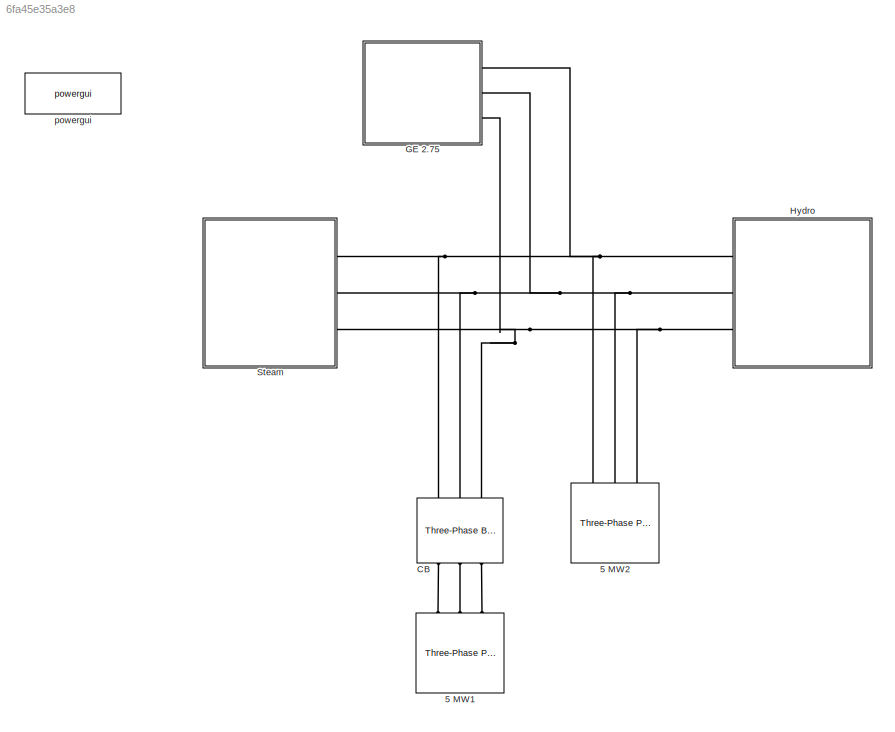
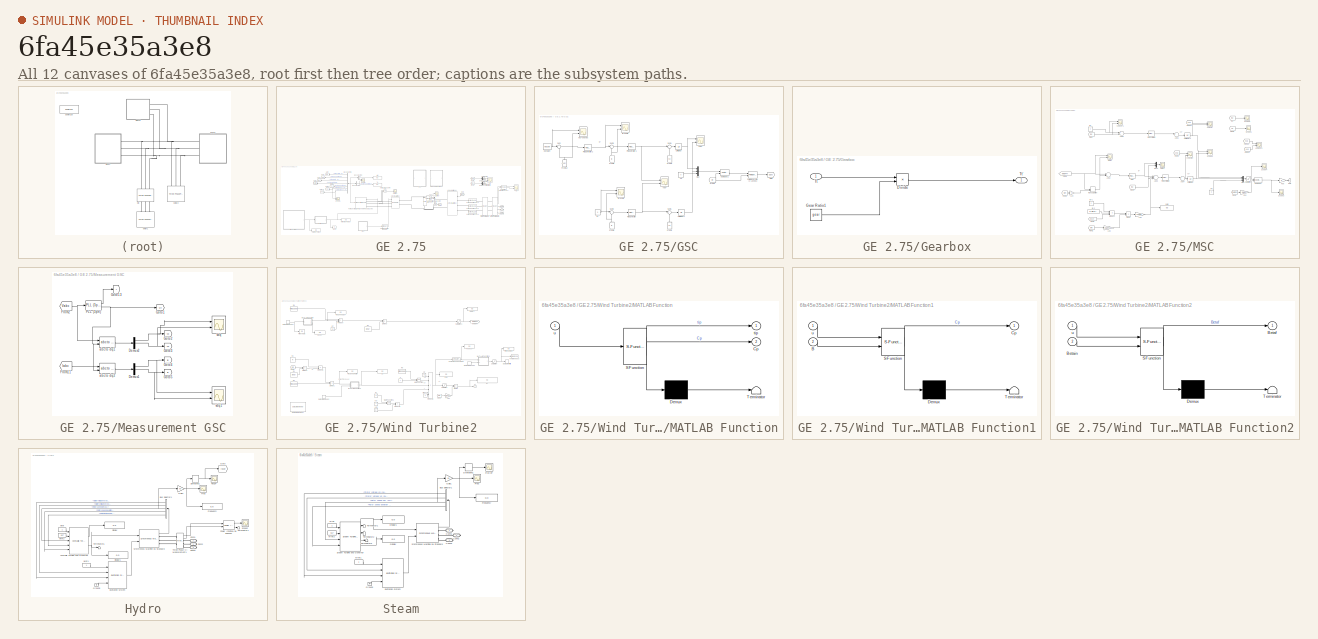
[diagram: thumbnail index - all 12 canvases of the model, root first then tree order]
MODEL slx_6fa45e35a3e8
KIND model
CONFIG AbsTol = auto
CONFIG FixedStep = Ts
CONFIG MaxStep = auto
CONFIG MinStep = auto
CONFIG PreLoadFcn = Ts=5e-6;
CONFIG RelTol = 1e-3
CONFIG SampleTimeConstraint = Unconstrained
CONFIG Solver = FixedStepDiscrete
CONFIG SolverMode = Auto
CONFIG SolverName = FixedStepDiscrete
CONFIG StartTime = 0.0
CONFIG StopTime = 3
BLOCK [Reference] 5 MW1  REF=powerlib/Elements/Three-Phase
Parallel RLC Load
  AttributesFormatString = \n
  Ports = [0, 0, 0, 0, 0, 3]
  SourceBlock = powerlib/Elements/Three-Phase\nParallel RLC Load
  SourceType = Three-Phase Parallel RLC Load
BLOCK [Reference] 5 MW2  REF=powerlib/Elements/Three-Phase
Parallel RLC Load
  AttributesFormatString = \n
  Ports = [0, 0, 0, 0, 0, 3]
  SourceBlock = powerlib/Elements/Three-Phase\nParallel RLC Load
  SourceType = Three-Phase Parallel RLC Load
BLOCK [Reference] CB  REF=powerlib/Elements/Three-Phase Breaker
  Ports = [0, 0, 0, 0, 0, 3, 3]
  SourceBlock = powerlib/Elements/Three-Phase Breaker
  SourceType = Three-Phase Breaker
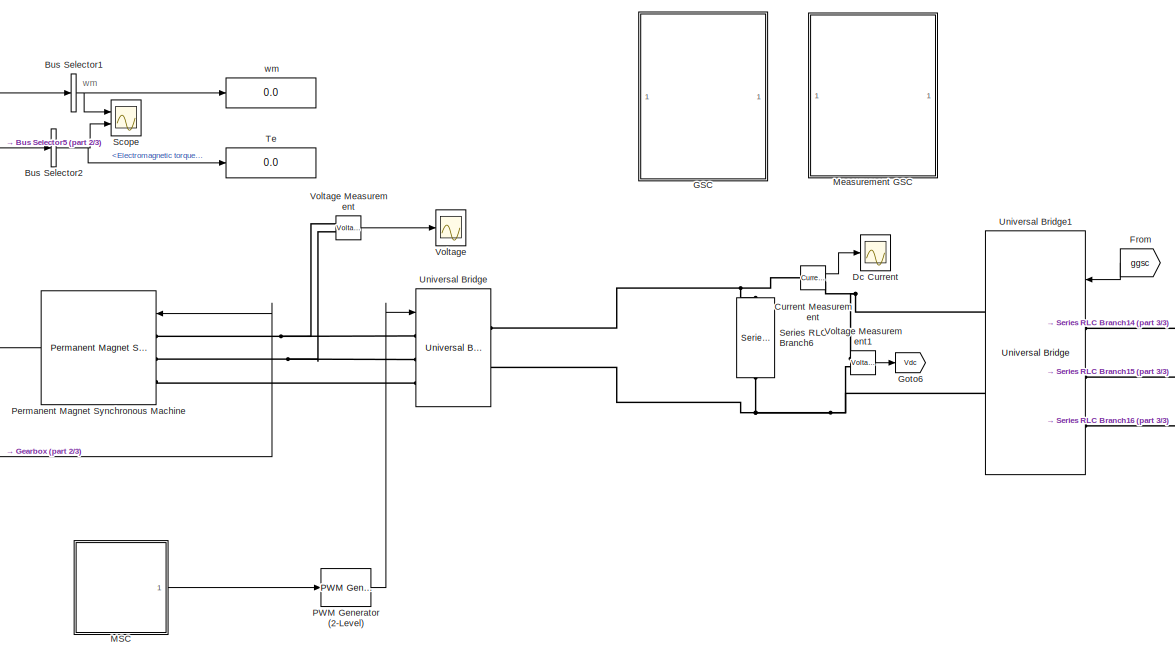
[diagram: GE 2.75 - part 1/3, center side, full height]
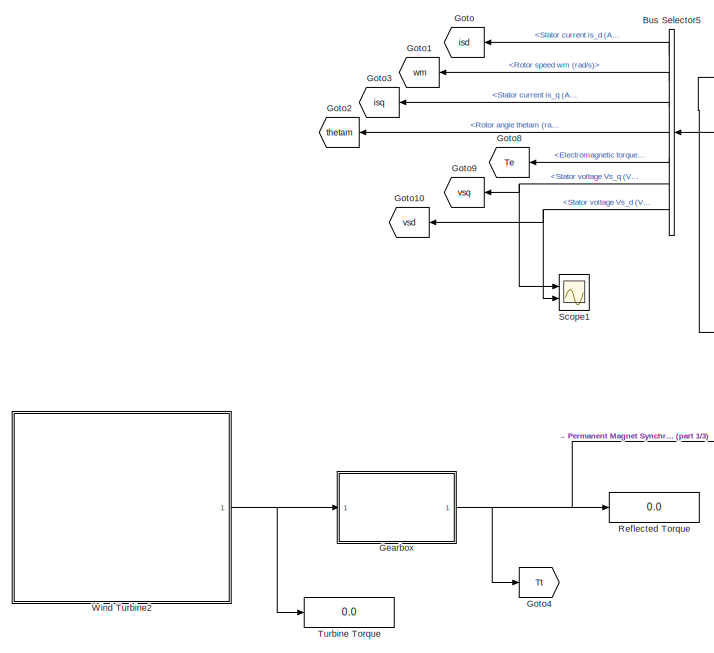
[diagram: GE 2.75 - part 2/3, left side, full height]
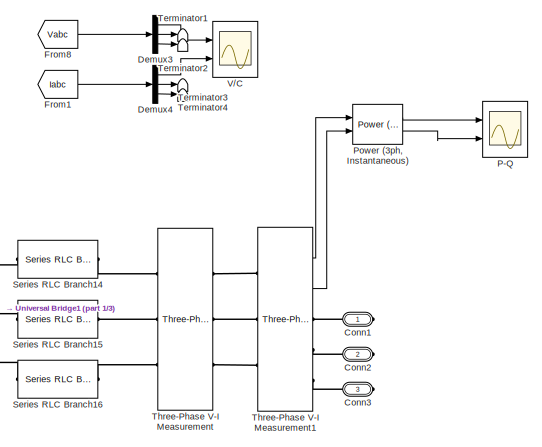
[diagram: GE 2.75 - part 3/3, middle right region]
BLOCK [SubSystem] GE 2.75
  Ports = [0, 0, 0, 0, 0, 0, 3]
  RequestExecContextInheritance = off
  Variant = off
BLOCK [BusSelector] GE 2.75/Bus Selector1
  OutputAsBus = on
  OutputSignals = Rotor speed wm (rad/s)
  Ports = [1, 1]
BLOCK [BusSelector] GE 2.75/Bus Selector2
  OutputSignals = Electromagnetic torque Te (N*m)
  Ports = [1, 1]
BLOCK [BusSelector] GE 2.75/Bus Selector5
  OutputSignals = Stator current is_d (A),Rotor speed wm (rad/s),Stator current is_q (A),Rotor angle thetam (rad),Electromagnetic torque Te (N*m),Stator voltage Vs_q (V),Stator voltage Vs_d (V)
  Ports = [1, 7]
BLOCK [PMIOPort] GE 2.75/Conn1
  Port = 1
  Side = Right
BLOCK [PMIOPort] GE 2.75/Conn2
  Port = 2
  Side = Right
BLOCK [PMIOPort] GE 2.75/Conn3
  Port = 3
  Side = Right
BLOCK [Reference] GE 2.75/Current Measurement  REF=powerlib/Measurements/Current Measurement
  Ports = [0, 1, 0, 0, 0, 1, 1]
  SourceBlock = powerlib/Measurements/Current Measurement
  SourceType = Current Measurement
  UserDataPersistent = on
BLOCK [Scope] GE 2.75/Dc Current
  Ports = [1]
  ScopeSpecificationString = Simulink.scopes.TimeScopeBlockCfg('CurrentConfiguration', extmgr.ConfigurationSet(extmgr.Configuration('Core','General UI',true),extmgr.Configuration('Core','Source UI',true),extmgr.Configuration('Sources','WiredSimulink',true,'DataLoggingSaveFormat','StructureWithTime','DataLoggingDecimation','1','DataLoggingDecimateData',true,'DataLoggingVariableName','ScopeData1'),extmgr.Configuration('Visuals'...<+2273ch>
BLOCK [Demux] GE 2.75/Demux3
  DisplayOption = bar
  Outputs = 3
  Ports = [1, 3]
BLOCK [Demux] GE 2.75/Demux4
  DisplayOption = bar
  Outputs = 3
  Ports = [1, 3]
BLOCK [From] GE 2.75/From
  GotoTag = ggsc
  TagVisibility = global
BLOCK [From] GE 2.75/From1
  GotoTag = Iabc
  TagVisibility = global
BLOCK [From] GE 2.75/From8
  GotoTag = Vabc
  TagVisibility = global
BLOCK [SubSystem] GE 2.75/GSC
  Ports = []
  RequestExecContextInheritance = off
  Variant = off
BLOCK [Constant] GE 2.75/GSC/Constant
  Value = Vdcset
BLOCK [From] GE 2.75/GSC/From12
  GotoTag = Vdc
  TagVisibility = global
BLOCK [From] GE 2.75/GSC/From3
  GotoTag = vd
  TagVisibility = global
BLOCK [From] GE 2.75/GSC/From4
  GotoTag = vq
  TagVisibility = global
BLOCK [From] GE 2.75/GSC/From5
  GotoTag = id
  TagVisibility = global
BLOCK [From] GE 2.75/GSC/From6
  GotoTag = iq
  TagVisibility = global
BLOCK [From] GE 2.75/GSC/From7
  GotoTag = wt
  TagVisibility = global
BLOCK [Goto] GE 2.75/GSC/Goto
  GotoTag = ggsc
  TagVisibility = global
BLOCK [Mux] GE 2.75/GSC/Mux
  DisplayOption = bar
  Inputs = 3
  Ports = [3, 1]
BLOCK [Reference] GE 2.75/GSC/PID Controller  REF=simulink/Continuous/PID Controller
  Ports = [1, 1]
  SourceBlock = simulink/Continuous/PID Controller
  SourceType = PID 1dof
BLOCK [Reference] GE 2.75/GSC/PID Controller1  REF=simulink/Continuous/PID Controller
  Ports = [1, 1]
  SourceBlock = simulink/Continuous/PID Controller
  SourceType = PID 1dof
BLOCK [Reference] GE 2.75/GSC/PID Controller2  REF=simulink/Continuous/PID Controller
  Ports = [1, 1]
  SourceBlock = simulink/Continuous/PID Controller
  SourceType = PID 1dof
BLOCK [Reference] GE 2.75/GSC/PWM Generator (2-Level)2  REF=powerlib_meascontrol/Pulse & Signal
Generators/PWM Generator
(2-Level)
  Ports = [2, 1]
  SourceBlock = powerlib_meascontrol/Pulse & Signal\nGenerators/PWM Generator\n(2-Level)
  SourceType = PWM Generator (2-Level)
BLOCK [Sum] GE 2.75/GSC/Sum
  IconShape = round
  InputSameDT = off
  Inputs = |-+
  OutDataTypeStr = Inherit: Inherit via internal rule
  Ports = [2, 1]
  SaturateOnIntegerOverflow = off
BLOCK [Sum] GE 2.75/GSC/Sum1
  IconShape = round
  InputSameDT = off
  Inputs = |++
  OutDataTypeStr = Inherit: Inherit via internal rule
  Ports = [2, 1]
  SaturateOnIntegerOverflow = off
BLOCK [Sum] GE 2.75/GSC/Sum2
  IconShape = round
  InputSameDT = off
  Inputs = |+-
  OutDataTypeStr = Inherit: Inherit via internal rule
  Ports = [2, 1]
  SaturateOnIntegerOverflow = off
BLOCK [Sum] GE 2.75/GSC/Sum3
  IconShape = round
  InputSameDT = off
  Inputs = |+-
  OutDataTypeStr = Inherit: Inherit via internal rule
  Ports = [2, 1]
  SaturateOnIntegerOverflow = off
BLOCK [Sum] GE 2.75/GSC/Sum4
  IconShape = round
  InputSameDT = off
  Inputs = |++
  OutDataTypeStr = Inherit: Inherit via internal rule
  Ports = [2, 1]
  SaturateOnIntegerOverflow = off
BLOCK [UnitDelay] GE 2.75/GSC/Unit Delay
  InputProcessing = Elements as channels (sample based)
  SampleTime = -1
BLOCK [UnitDelay] GE 2.75/GSC/Unit Delay1
  InputProcessing = Elements as channels (sample based)
  SampleTime = -1
BLOCK [Scope] GE 2.75/GSC/Vdc* and Vdc
  NumInputPorts = 2
  Ports = [2]
  ScopeSpecificationString = Simulink.scopes.TimeScopeBlockCfg('CurrentConfiguration', extmgr.ConfigurationSet(extmgr.Configuration('Core','General UI',true),extmgr.Configuration('Core','Source UI',true),extmgr.Configuration('Sources','WiredSimulink',true,'DataLoggingSaveFormat','Array','DataLoggingDecimation','1','DataLoggingVariableName','ScopeData3'),extmgr.Configuration('Visuals','Time Domain',true,'SerializedDisplays',{s...<+3407ch>
BLOCK [Reference] GE 2.75/GSC/dq0 to abc1  REF=powerlib_meascontrol/Transformations/dq0 to abc
  Ports = [2, 1]
  SourceBlock = powerlib_meascontrol/Transformations/dq0 to abc
  SourceType = dq0 to abc Transformation
BLOCK [Scope] GE 2.75/GSC/id* and id 
  NumInputPorts = 2
  Ports = [2]
  ScopeSpecificationString = Simulink.scopes.TimeScopeBlockCfg('CurrentConfiguration', extmgr.ConfigurationSet(extmgr.Configuration('Core','General UI',true),extmgr.Configuration('Core','Source UI',true),extmgr.Configuration('Sources','WiredSimulink',true,'DataLoggingSaveFormat','Array','DataLoggingDecimation','1','DataLoggingVariableName','ScopeData3'),extmgr.Configuration('Visuals','Time Domain',true,'SerializedDisplays',{s...<+1516ch>
BLOCK [Constant] GE 2.75/GSC/iq*
  Value = 0
BLOCK [Scope] GE 2.75/GSC/iq* and iq 
  NumInputPorts = 2
  Ports = [2]
  ScopeSpecificationString = Simulink.scopes.TimeScopeBlockCfg('CurrentConfiguration', extmgr.ConfigurationSet(extmgr.Configuration('Core','General UI',true),extmgr.Configuration('Core','Source UI',true),extmgr.Configuration('Sources','WiredSimulink',true,'DataLoggingSaveFormat','Array','DataLoggingDecimation','1','DataLoggingVariableName','ScopeData4'),extmgr.Configuration('Visuals','Time Domain',true,'SerializedDisplays',{s...<+1508ch>
BLOCK [Constant] GE 2.75/GSC/v0
  Value = 0
BLOCK [Scope] GE 2.75/GSC/vdq*
  NumInputPorts = 2
  Ports = [2]
  ScopeSpecificationString = Simulink.scopes.TimeScopeBlockCfg('CurrentConfiguration', extmgr.ConfigurationSet(extmgr.Configuration('Core','General UI',true),extmgr.Configuration('Core','Source UI',true),extmgr.Configuration('Sources','WiredSimulink',true,'DataLoggingSaveFormat','Array','DataLoggingDecimation','1','DataLoggingVariableName','ScopeData1'),extmgr.Configuration('Visuals','Time Domain',true,'SerializedDisplays',{s...<+1499ch>
BLOCK [Scope] GE 2.75/GSC/vdq* 
  NumInputPorts = 2
  Ports = [2]
  ScopeSpecificationString = Simulink.scopes.TimeScopeBlockCfg('CurrentConfiguration', extmgr.ConfigurationSet(extmgr.Configuration('Core','General UI',true),extmgr.Configuration('Core','Source UI',true),extmgr.Configuration('Sources','WiredSimulink',true,'DataLoggingSaveFormat','Array','DataLoggingDecimation','1','DataLoggingVariableName','ScopeData5'),extmgr.Configuration('Visuals','Time Domain',true,'SerializedDisplays',{s...<+1514ch>
BLOCK [SubSystem] GE 2.75/Gearbox
  Ports = [1, 1]
  RequestExecContextInheritance = off
  Variant = off
BLOCK [Product] GE 2.75/Gearbox/Divide
  InputSameDT = off
  Inputs = */
  OutDataTypeStr = Inherit: Inherit via internal rule
  Ports = [2, 1]
  RndMeth = Floor
  SaturateOnIntegerOverflow = off
BLOCK [Constant] GE 2.75/Gearbox/Gear Ratio1
  Value = gear
BLOCK [Inport] GE 2.75/Gearbox/Tt
  IconDisplay = Port number
BLOCK [Outport] GE 2.75/Gearbox/Tt'
  IconDisplay = Port number
BLOCK [Goto] GE 2.75/Goto
  GotoTag = isd
  TagVisibility = global
BLOCK [Goto] GE 2.75/Goto1
  GotoTag = wm
  TagVisibility = global
BLOCK [Goto] GE 2.75/Goto10
  GotoTag = vsd
  TagVisibility = global
BLOCK [Goto] GE 2.75/Goto2
  GotoTag = thetam
  TagVisibility = global
BLOCK [Goto] GE 2.75/Goto3
  GotoTag = isq
  TagVisibility = global
BLOCK [Goto] GE 2.75/Goto4
  GotoTag = Tt
  TagVisibility = global
BLOCK [Goto] GE 2.75/Goto6
  GotoTag = Vdc
  TagVisibility = global
BLOCK [Goto] GE 2.75/Goto8
  GotoTag = Te
  TagVisibility = global
BLOCK [Goto] GE 2.75/Goto9
  GotoTag = vsq
  TagVisibility = global
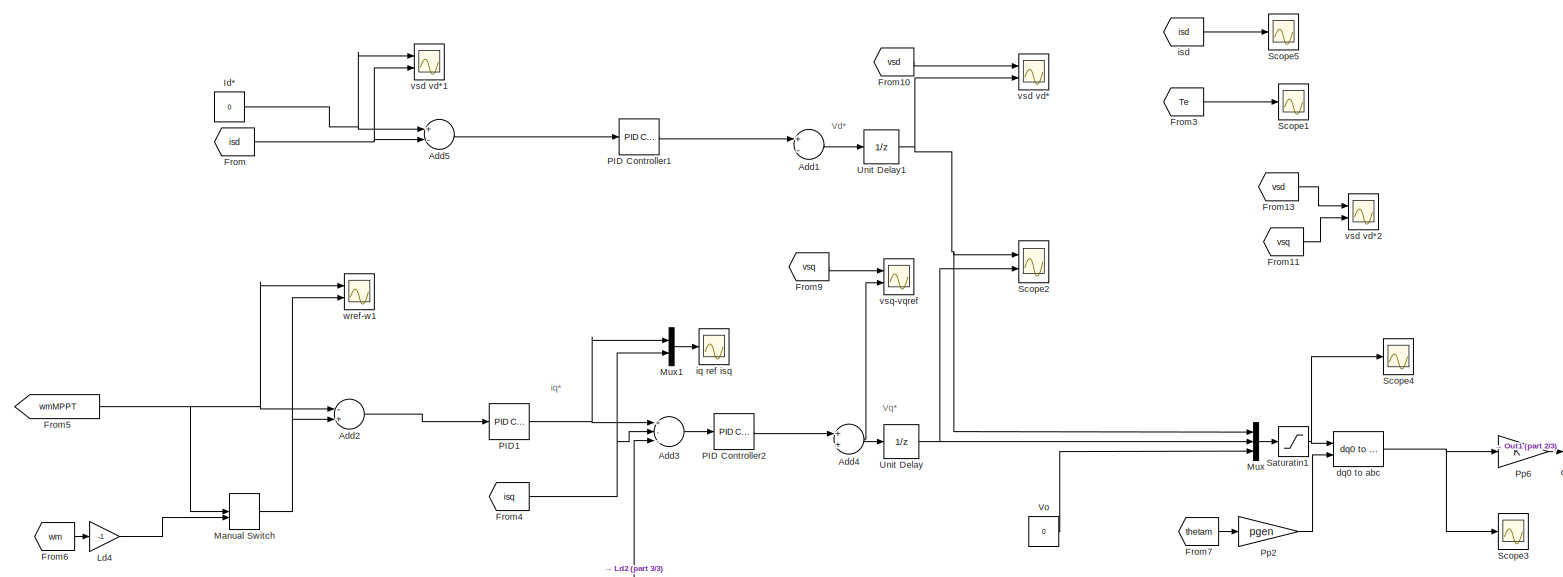
[diagram: GE 2.75/MSC - part 1/3, full width, middle band]
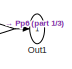
[diagram: GE 2.75/MSC - part 2/3, middle right region]
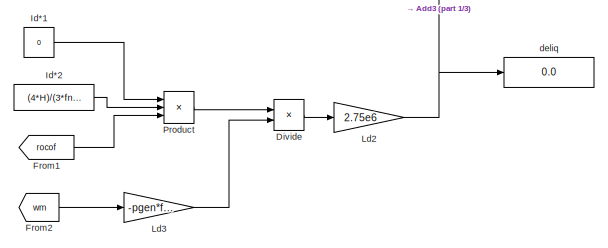
[diagram: GE 2.75/MSC - part 3/3, bottom left region]
BLOCK [SubSystem] GE 2.75/MSC
  Ports = [0, 1]
  RequestExecContextInheritance = off
  Variant = off
BLOCK [Sum] GE 2.75/MSC/Add1
  InputSameDT = off
  Inputs = +-
  OutDataTypeStr = Inherit: Inherit via internal rule
  Ports = [2, 1]
  SaturateOnIntegerOverflow = off
BLOCK [Sum] GE 2.75/MSC/Add2
  InputSameDT = off
  Inputs = -+
  OutDataTypeStr = Inherit: Inherit via internal rule
  Ports = [2, 1]
  SaturateOnIntegerOverflow = off
BLOCK [Sum] GE 2.75/MSC/Add3
  InputSameDT = off
  Inputs = +--
  OutDataTypeStr = Inherit: Inherit via internal rule
  Ports = [3, 1]
  SaturateOnIntegerOverflow = off
BLOCK [Sum] GE 2.75/MSC/Add4
  InputSameDT = off
  OutDataTypeStr = Inherit: Inherit via internal rule
  Ports = [2, 1]
  SaturateOnIntegerOverflow = off
BLOCK [Sum] GE 2.75/MSC/Add5
  InputSameDT = off
  Inputs = +-
  OutDataTypeStr = Inherit: Inherit via internal rule
  Ports = [2, 1]
  SaturateOnIntegerOverflow = off
BLOCK [Product] GE 2.75/MSC/Divide
  InputSameDT = off
  Inputs = */
  OutDataTypeStr = Inherit: Inherit via internal rule
  Ports = [2, 1]
  RndMeth = Floor
  SaturateOnIntegerOverflow = off
BLOCK [From] GE 2.75/MSC/From
  GotoTag = isd
  TagVisibility = global
BLOCK [From] GE 2.75/MSC/From1
  GotoTag = rocof
  TagVisibility = global
BLOCK [From] GE 2.75/MSC/From10
  GotoTag = vsd
  TagVisibility = global
BLOCK [From] GE 2.75/MSC/From11
  GotoTag = vsq
  TagVisibility = global
BLOCK [From] GE 2.75/MSC/From13
  GotoTag = vsd
  TagVisibility = global
BLOCK [From] GE 2.75/MSC/From2
  GotoTag = wm
  TagVisibility = global
BLOCK [From] GE 2.75/MSC/From3
  GotoTag = Te
  TagVisibility = global
BLOCK [From] GE 2.75/MSC/From4
  GotoTag = isq
  TagVisibility = global
BLOCK [From] GE 2.75/MSC/From5
  GotoTag = wmMPPT
  TagVisibility = global
BLOCK [From] GE 2.75/MSC/From6
  GotoTag = wm
  TagVisibility = global
BLOCK [From] GE 2.75/MSC/From7
  GotoTag = thetam
  TagVisibility = global
BLOCK [From] GE 2.75/MSC/From9
  GotoTag = vsq
  TagVisibility = global
BLOCK [Constant] GE 2.75/MSC/Id*
  Value = 0
BLOCK [Constant] GE 2.75/MSC/Id*1
  Value = 0
BLOCK [Constant] GE 2.75/MSC/Id*2
  Value = (4*H)/(3*fnom)
BLOCK [Gain] GE 2.75/MSC/Ld2
  Gain = 2.75e6
  OutDataTypeStr = Inherit: Inherit via internal rule
  ParamDataTypeStr = Inherit: Inherit via internal rule
  SaturateOnIntegerOverflow = off
BLOCK [Gain] GE 2.75/MSC/Ld3
  Gain = -pgen*fluxlinkage
  OutDataTypeStr = Inherit: Inherit via internal rule
  ParamDataTypeStr = Inherit: Inherit via internal rule
  SaturateOnIntegerOverflow = off
BLOCK [Gain] GE 2.75/MSC/Ld4
  Gain = -1
  OutDataTypeStr = Inherit: Inherit via internal rule
  ParamDataTypeStr = Inherit: Inherit via internal rule
  SaturateOnIntegerOverflow = off
BLOCK [ManualSwitch] GE 2.75/MSC/Manual Switch
  CurrentSetting = 0
BLOCK [Mux] GE 2.75/MSC/Mux
  DisplayOption = bar
  Inputs = 3
  Ports = [3, 1]
BLOCK [Mux] GE 2.75/MSC/Mux1
  DisplayOption = bar
  Inputs = 2
  Ports = [2, 1]
BLOCK [Outport] GE 2.75/MSC/Out1
  IconDisplay = Port number
BLOCK [Reference] GE 2.75/MSC/PID Controller1  REF=simulink/Continuous/PID Controller
  Ports = [1, 1]
  SourceBlock = simulink/Continuous/PID Controller
  SourceType = PID 1dof
BLOCK [Reference] GE 2.75/MSC/PID Controller2  REF=simulink/Continuous/PID Controller
  Ports = [1, 1]
  SourceBlock = simulink/Continuous/PID Controller
  SourceType = PID 1dof
BLOCK [Reference] GE 2.75/MSC/PID1  REF=simulink/Continuous/PID Controller
  Ports = [1, 1]
  SourceBlock = simulink/Continuous/PID Controller
  SourceType = PID 1dof
BLOCK [Gain] GE 2.75/MSC/Pp2
  Gain = pgen
  OutDataTypeStr = Inherit: Inherit via internal rule
  ParamDataTypeStr = Inherit: Inherit via internal rule
  SaturateOnIntegerOverflow = off
BLOCK [Gain] GE 2.75/MSC/Pp6
  OutDataTypeStr = Inherit: Inherit via internal rule
  ParamDataTypeStr = Inherit: Inherit via internal rule
  SaturateOnIntegerOverflow = off
BLOCK [Product] GE 2.75/MSC/Product
  InputSameDT = off
  Inputs = 3
  OutDataTypeStr = Inherit: Inherit via internal rule
  Ports = [3, 1]
  RndMeth = Floor
  SaturateOnIntegerOverflow = off
BLOCK [Saturate] GE 2.75/MSC/Saturatin1
  InputPortMap = u0
  LowerLimit = -2000
  Ports = [1, 1]
  UpperLimit = 2000
BLOCK [Scope] GE 2.75/MSC/Scope1
  Ports = [1]
  ScopeSpecificationString = Simulink.scopes.TimeScopeBlockCfg('CurrentConfiguration', extmgr.ConfigurationSet(extmgr.Configuration('Core','General UI',true),extmgr.Configuration('Core','Source UI',true),extmgr.Configuration('Sources','WiredSimulink',true,'DataLoggingVariableName','ScopeData2'),extmgr.Configuration('Visuals','Time Domain',true,'SerializedDisplays',{struct('MinYLimReal','-20085.79123','MaxYLimReal','25034.0231...<+1494ch>
BLOCK [Scope] GE 2.75/MSC/Scope2
  NumInputPorts = 2
  Ports = [2]
  ScopeSpecificationString = Simulink.scopes.TimeScopeBlockCfg('CurrentConfiguration', extmgr.ConfigurationSet(extmgr.Configuration('Core','General UI',true),extmgr.Configuration('Core','Source UI',true),extmgr.Configuration('Sources','WiredSimulink',true,'DataLoggingVariableName','ScopeData3'),extmgr.Configuration('Visuals','Time Domain',true,'SerializedDisplays',{struct('MinYLimReal','-4535.38659','MaxYLimReal','3598.02984'...<+1476ch>
BLOCK [Scope] GE 2.75/MSC/Scope3
  Ports = [1]
  ScopeSpecificationString = Simulink.scopes.TimeScopeBlockCfg('CurrentConfiguration', extmgr.ConfigurationSet(extmgr.Configuration('Core','General UI',true),extmgr.Configuration('Core','Source UI',true),extmgr.Configuration('Sources','WiredSimulink',true,'DataLoggingVariableName','ScopeData4'),extmgr.Configuration('Visuals','Time Domain',true,'SerializedDisplays',{struct('MinYLimReal','-1913.83876','MaxYLimReal','1639.58149'...<+1494ch>
BLOCK [Scope] GE 2.75/MSC/Scope4
  Ports = [1]
  ScopeSpecificationString = Simulink.scopes.TimeScopeBlockCfg('CurrentConfiguration', extmgr.ConfigurationSet(extmgr.Configuration('Core','General UI',true),extmgr.Configuration('Core','Source UI',true),extmgr.Configuration('Sources','WiredSimulink',true,'DataLoggingVariableName','ScopeData6'),extmgr.Configuration('Visuals','Time Domain',true,'SerializedDisplays',{struct('MinYLimReal','-87.91575','MaxYLimReal','104.4048','YL...<+1479ch>
BLOCK [Scope] GE 2.75/MSC/Scope5
  Ports = [1]
  ScopeSpecificationString = Simulink.scopes.TimeScopeBlockCfg('CurrentConfiguration', extmgr.ConfigurationSet(extmgr.Configuration('Core','General UI',true),extmgr.Configuration('Core','Source UI',true),extmgr.Configuration('Sources','WiredSimulink',true,'DataLoggingVariableName','ScopeData1'),extmgr.Configuration('Visuals','Time Domain',true,'SerializedDisplays',{struct('MinYLimReal','-4464.03229','MaxYLimReal','496.00359',...<+1476ch>
BLOCK [UnitDelay] GE 2.75/MSC/Unit Delay
  InputProcessing = Elements as channels (sample based)
  SampleTime = -1
BLOCK [UnitDelay] GE 2.75/MSC/Unit Delay1
  InputProcessing = Elements as channels (sample based)
  SampleTime = -1
BLOCK [Constant] GE 2.75/MSC/Vo
  Value = 0
BLOCK [Display] GE 2.75/MSC/deliq
  Decimation = 1
  Ports = [1]
BLOCK [Reference] GE 2.75/MSC/dq0 to abc  REF=powerlib_meascontrol/Transformations/dq0 to abc
  Ports = [2, 1]
  SourceBlock = powerlib_meascontrol/Transformations/dq0 to abc
  SourceType = dq0 to abc Transformation
BLOCK [Scope] GE 2.75/MSC/iq ref isq
  Ports = [1]
  ScopeSpecificationString = Simulink.scopes.TimeScopeBlockCfg('CurrentConfiguration', extmgr.ConfigurationSet(extmgr.Configuration('Core','General UI',true),extmgr.Configuration('Core','Source UI',true),extmgr.Configuration('Sources','WiredSimulink',true,'DataLoggingVariableName','ScopeData7'),extmgr.Configuration('Visuals','Time Domain',true,'SerializedDisplays',{struct('MinYLimReal','-1473.92776','MaxYLimReal','13265.34988...<+1492ch>
BLOCK [From] GE 2.75/MSC/isd
  GotoTag = isd
  TagVisibility = global
BLOCK [Scope] GE 2.75/MSC/vsd vd*
  NumInputPorts = 2
  Ports = [2]
  ScopeSpecificationString = Simulink.scopes.TimeScopeBlockCfg('CurrentConfiguration', extmgr.ConfigurationSet(extmgr.Configuration('Core','General UI',true),extmgr.Configuration('Core','Source UI',true),extmgr.Configuration('Sources','WiredSimulink',true,'DataLoggingVariableName','ScopeData3'),extmgr.Configuration('Visuals','Time Domain',true,'SerializedDisplays',{struct('MinYLimReal','-1851.26024','MaxYLimReal','156.37407',...<+1503ch>
BLOCK [Scope] GE 2.75/MSC/vsd vd*1
  NumInputPorts = 2
  Ports = [2]
  ScopeSpecificationString = Simulink.scopes.TimeScopeBlockCfg('CurrentConfiguration', extmgr.ConfigurationSet(extmgr.Configuration('Core','General UI',true),extmgr.Configuration('Core','Source UI',true),extmgr.Configuration('Sources','WiredSimulink',true,'DataLoggingVariableName','ScopeData3'),extmgr.Configuration('Visuals','Time Domain',true,'SerializedDisplays',{struct('MinYLimReal','-15732.54564','MaxYLimReal','3045.92802...<+1489ch>
BLOCK [Scope] GE 2.75/MSC/vsd vd*2
  NumInputPorts = 2
  Ports = [2]
  ScopeSpecificationString = Simulink.scopes.TimeScopeBlockCfg('CurrentConfiguration', extmgr.ConfigurationSet(extmgr.Configuration('Core','General UI',true),extmgr.Configuration('Core','Source UI',true),extmgr.Configuration('Sources','WiredSimulink',true,'DataLoggingVariableName','ScopeData1'),extmgr.Configuration('Visuals','Time Domain',true,'SerializedDisplays',{struct('MinYLimReal','-1013.63419','MaxYLimReal','1022.86018'...<+1478ch>
BLOCK [Scope] GE 2.75/MSC/vsq-vqref
  NumInputPorts = 2
  Ports = [2]
  ScopeSpecificationString = Simulink.scopes.TimeScopeBlockCfg('CurrentConfiguration', extmgr.ConfigurationSet(extmgr.Configuration('Core','General UI',true),extmgr.Configuration('Core','Source UI',true),extmgr.Configuration('Sources','WiredSimulink',true,'DataLoggingVariableName','ScopeData8'),extmgr.Configuration('Visuals','Time Domain',true,'SerializedDisplays',{struct('MinYLimReal','-10559.66401','MaxYLimReal','3513.85417...<+1490ch>
BLOCK [Scope] GE 2.75/MSC/wref-w1
  NumInputPorts = 2
  Ports = [2]
  ScopeSpecificationString = Simulink.scopes.TimeScopeBlockCfg('CurrentConfiguration', extmgr.ConfigurationSet(extmgr.Configuration('Core','General UI',true),extmgr.Configuration('Core','Source UI',true),extmgr.Configuration('Sources','WiredSimulink',true,'DataLoggingVariableName','ScopeData1'),extmgr.Configuration('Visuals','Time Domain',true,'SerializedDisplays',{struct('MinYLimReal','181.23762','MaxYLimReal','185.41948','Y...<+1471ch>
BLOCK [SubSystem] GE 2.75/Measurement GSC
  Ports = []
  RequestExecContextInheritance = off
  Variant = off
BLOCK [Demux] GE 2.75/Measurement GSC/Demux1
  DisplayOption = bar
  Outputs = 3
  Ports = [1, 3]
BLOCK [Demux] GE 2.75/Measurement GSC/Demux2
  DisplayOption = bar
  Outputs = 3
  Ports = [1, 3]
BLOCK [From] GE 2.75/Measurement GSC/From11
  GotoTag = Iabc
  TagVisibility = global
BLOCK [From] GE 2.75/Measurement GSC/From2
  GotoTag = Vabc
  TagVisibility = global
BLOCK [Goto] GE 2.75/Measurement GSC/Goto1
  GotoTag = wt
  TagVisibility = global
BLOCK [Goto] GE 2.75/Measurement GSC/Goto13
  GotoTag = f
  TagVisibility = global
BLOCK [Goto] GE 2.75/Measurement GSC/Goto2
  GotoTag = vd
  TagVisibility = global
BLOCK [Goto] GE 2.75/Measurement GSC/Goto3
  GotoTag = vq
  TagVisibility = global
BLOCK [Goto] GE 2.75/Measurement GSC/Goto4
  GotoTag = id
  TagVisibility = global
BLOCK [Goto] GE 2.75/Measurement GSC/Goto5
  GotoTag = iq
  TagVisibility = global
BLOCK [Reference] GE 2.75/Measurement GSC/PLL (3ph)  REF=powerlib_meascontrol/PLL/PLL
(3ph)
  Ports = [1, 2]
  SourceBlock = powerlib_meascontrol/PLL/PLL\n(3ph)
  SourceType = PLL (3ph)
BLOCK [Reference] GE 2.75/Measurement GSC/abc to dq1  REF=powerlib_meascontrol/Transformations/abc to dq0
  Ports = [2, 1]
  SourceBlock = powerlib_meascontrol/Transformations/abc to dq0
  SourceType = abc to dq0 Transformation
BLOCK [Reference] GE 2.75/Measurement GSC/abc to dq2  REF=powerlib_meascontrol/Transformations/abc to dq0
  Ports = [2, 1]
  SourceBlock = powerlib_meascontrol/Transformations/abc to dq0
  SourceType = abc to dq0 Transformation
BLOCK [Scope] GE 2.75/Measurement GSC/vdq
  NumInputPorts = 2
  Ports = [2]
  ScopeSpecificationString = Simulink.scopes.TimeScopeBlockCfg('CurrentConfiguration', extmgr.ConfigurationSet(extmgr.Configuration('Core','General UI',true),extmgr.Configuration('Core','Source UI',true),extmgr.Configuration('Sources','WiredSimulink',true,'DataLoggingSaveFormat','Array','DataLoggingDecimation','1','DataLoggingVariableName','ScopeData1'),extmgr.Configuration('Visuals','Time Domain',true,'SerializedDisplays',{s...<+1509ch>
BLOCK [Scope] GE 2.75/Measurement GSC/vdq1
  NumInputPorts = 2
  Ports = [2]
  ScopeSpecificationString = Simulink.scopes.TimeScopeBlockCfg('CurrentConfiguration', extmgr.ConfigurationSet(extmgr.Configuration('Core','General UI',true),extmgr.Configuration('Core','Source UI',true),extmgr.Configuration('Sources','WiredSimulink',true,'DataLoggingSaveFormat','Array','DataLoggingDecimation','1','DataLoggingVariableName','ScopeData2'),extmgr.Configuration('Visuals','Time Domain',true,'SerializedDisplays',{s...<+1509ch>
BLOCK [Scope] GE 2.75/P-Q
  NumInputPorts = 2
  Ports = [2]
  ScopeSpecificationString = Simulink.scopes.TimeScopeBlockCfg('CurrentConfiguration', extmgr.ConfigurationSet(extmgr.Configuration('Core','General UI',true),extmgr.Configuration('Core','Source UI',true),extmgr.Configuration('Sources','WiredSimulink',true,'DataLoggingVariableName','ScopeData1'),extmgr.Configuration('Visuals','Time Domain',true,'SerializedDisplays',{struct('MinYLimReal','-32401299.24512','MaxYLimReal','3081401...<+1541ch>
BLOCK [Reference] GE 2.75/PWM Generator (2-Level)  REF=powerlib_meascontrol/Pulse & Signal
Generators/PWM Generator
(2-Level)
  Ports = [1, 1]
  SourceBlock = powerlib_meascontrol/Pulse & Signal\nGenerators/PWM Generator\n(2-Level)
  SourceType = PWM Generator (2-Level)
BLOCK [Reference] GE 2.75/Permanent Magnet Synchronous Machine  REF=powerlib/Machines/Permanent Magnet
Synchronous Machine
  Ports = [1, 1, 0, 0, 0, 3]
  SourceBlock = powerlib/Machines/Permanent Magnet\nSynchronous Machine
  SourceType = Permanent Magnet Synchronous Machine
BLOCK [Reference] GE 2.75/Power (3ph, Instantaneous)  REF=powerlib_meascontrol/Measurements/Power
(3ph, Instantaneous)
  Ports = [2, 2]
  SourceBlock = powerlib_meascontrol/Measurements/Power\n(3ph, Instantaneous)
  SourceType = Power (3ph, Instantaneous)
BLOCK [Display] GE 2.75/Reflected Torque
  Decimation = 1
  Ports = [1]
BLOCK [Scope] GE 2.75/Scope
  NumInputPorts = 2
  Ports = [2]
  ScopeSpecificationString = Simulink.scopes.TimeScopeBlockCfg('CurrentConfiguration', extmgr.ConfigurationSet(extmgr.Configuration('Core','General UI',true),extmgr.Configuration('Core','Source UI',true),extmgr.Configuration('Sources','WiredSimulink',true,'DataLoggingSaveFormat','StructureWithTime','DataLoggingDecimation','1','DataLoggingDecimateData',true),extmgr.Configuration('Visuals','Time Domain',true,'SerializedDisplays...<+2259ch>
BLOCK [Scope] GE 2.75/Scope1
  NumInputPorts = 2
  Ports = [2]
  ScopeSpecificationString = Simulink.scopes.TimeScopeBlockCfg('CurrentConfiguration', extmgr.ConfigurationSet(extmgr.Configuration('Core','General UI',true),extmgr.Configuration('Core','Source UI',true),extmgr.Configuration('Sources','WiredSimulink',true,'DataLoggingSaveFormat','StructureWithTime','DataLoggingDecimation','1','DataLoggingDecimateData',true,'DataLoggingVariableName','ScopeData1'),extmgr.Configuration('Visuals'...<+2302ch>
BLOCK [Reference] GE 2.75/Series RLC Branch14  REF=powerlib/Elements/Series RLC Branch
  Ports = [0, 0, 0, 0, 0, 1, 1]
  SourceBlock = powerlib/Elements/Series RLC Branch
  SourceType = Series RLC Branch
BLOCK [Reference] GE 2.75/Series RLC Branch15  REF=powerlib/Elements/Series RLC Branch
  Ports = [0, 0, 0, 0, 0, 1, 1]
  SourceBlock = powerlib/Elements/Series RLC Branch
  SourceType = Series RLC Branch
BLOCK [Reference] GE 2.75/Series RLC Branch16  REF=powerlib/Elements/Series RLC Branch
  Ports = [0, 0, 0, 0, 0, 1, 1]
  SourceBlock = powerlib/Elements/Series RLC Branch
  SourceType = Series RLC Branch
BLOCK [Reference] GE 2.75/Series RLC Branch6  REF=powerlib/Elements/Series RLC Branch
  Ports = [0, 0, 0, 0, 0, 1, 1]
  SourceBlock = powerlib/Elements/Series RLC Branch
  SourceType = Series RLC Branch
BLOCK [Display] GE 2.75/Te
  Decimation = 1
  Ports = [1]
BLOCK [Terminator] GE 2.75/Terminator1
BLOCK [Terminator] GE 2.75/Terminator2
BLOCK [Terminator] GE 2.75/Terminator3
BLOCK [Terminator] GE 2.75/Terminator4
BLOCK [Reference] GE 2.75/Three-Phase V-I Measurement  REF=powerlib/Measurements/Three-Phase
V-I Measurement
  Ports = [0, 0, 0, 0, 0, 3, 3]
  SourceBlock = powerlib/Measurements/Three-Phase\nV-I Measurement
  SourceType = Three-Phase VI Measurement
BLOCK [Reference] GE 2.75/Three-Phase V-I Measurement1  REF=powerlib/Measurements/Three-Phase
V-I Measurement
  Ports = [0, 2, 0, 0, 0, 3, 3]
  SourceBlock = powerlib/Measurements/Three-Phase\nV-I Measurement
  SourceType = Three-Phase VI Measurement
BLOCK [Display] GE 2.75/Turbine Torque
  Decimation = 1
  Ports = [1]
BLOCK [Reference] GE 2.75/Universal Bridge  REF=powerlib/Power
Electronics/Universal Bridge
  Ports = [1, 0, 0, 0, 0, 3, 2]
  SourceBlock = powerlib/Power\nElectronics/Universal Bridge
  SourceType = Universal Bridge
BLOCK [Reference] GE 2.75/Universal Bridge1  REF=powerlib/Power
Electronics/Universal Bridge
  Ports = [1, 0, 0, 0, 0, 3, 2]
  SourceBlock = powerlib/Power\nElectronics/Universal Bridge
  SourceType = Universal Bridge
BLOCK [Scope] GE 2.75/V//C 
  NumInputPorts = 2
  Ports = [2]
  ScopeSpecificationString = Simulink.scopes.TimeScopeBlockCfg('CurrentConfiguration', extmgr.ConfigurationSet(extmgr.Configuration('Core','General UI',true),extmgr.Configuration('Core','Source UI',true),extmgr.Configuration('Sources','WiredSimulink',true,'DataLoggingVariableName','ScopeData2'),extmgr.Configuration('Visuals','Time Domain',true,'SerializedDisplays',{struct('MinYLimReal','-2.61517','MaxYLimReal','1.24455','YLab...<+1449ch>
BLOCK [Scope] GE 2.75/Voltage
  Ports = [1]
  ScopeSpecificationString = Simulink.scopes.TimeScopeBlockCfg('CurrentConfiguration', extmgr.ConfigurationSet(extmgr.Configuration('Core','General UI',true),extmgr.Configuration('Core','Source UI',true),extmgr.Configuration('Sources','WiredSimulink',true,'DataLoggingSaveFormat','StructureWithTime','DataLoggingDecimation','1','DataLoggingDecimateData',true,'DataLoggingVariableName','ScopeData5'),extmgr.Configuration('Visuals'...<+2259ch>
BLOCK [Reference] GE 2.75/Voltage Measurement  REF=powerlib/Measurements/Voltage Measurement
  Ports = [0, 1, 0, 0, 0, 2]
  SourceBlock = powerlib/Measurements/Voltage Measurement
  SourceType = Voltage Measurement
  UserDataPersistent = on
BLOCK [Reference] GE 2.75/Voltage Measurement1  REF=powerlib/Measurements/Voltage Measurement
  Ports = [0, 1, 0, 0, 0, 2]
  SourceBlock = powerlib/Measurements/Voltage Measurement
  SourceType = Voltage Measurement
  UserDataPersistent = on
BLOCK [SubSystem] GE 2.75/Wind Turbine2
  Ports = [0, 1]
  RequestExecContextInheritance = off
  Variant = off
BLOCK [Constant] GE 2.75/Wind Turbine2/1//2
  Value = 0.5
BLOCK [Constant] GE 2.75/Wind Turbine2/3
  Value = 3
BLOCK [Constant] GE 2.75/Wind Turbine2/Air Density
  Value = p
BLOCK [Reference] GE 2.75/Wind Turbine2/Compare To Constant1  REF=simulink/Logic and Bit
Operations/Compare
To Constant
  Ports = [1, 1]
  SourceBlock = simulink/Logic and Bit\nOperations/Compare\nTo Constant
  SourceType = Compare To Constant
BLOCK [Display] GE 2.75/Wind Turbine2/Cp
  Decimation = 1
  Ports = [1]
BLOCK [Display] GE 2.75/Wind Turbine2/Cp opt
  Decimation = 1
  Ports = [1]
BLOCK [DataStoreMemory] GE 2.75/Wind Turbine2/Data Store Memory1
  DataStoreName = Beta
  OutMax = [90]
  OutMin = [0]
  ReadBeforeWriteMsg = warning
  WriteAfterReadMsg = warning
  WriteAfterWriteMsg = warning
BLOCK [DataStoreRead] GE 2.75/Wind Turbine2/Data Store Read1
  DataStoreName = Beta
  Ports = [0, 1]
  SampleTime = Ts
BLOCK [DataStoreRead] GE 2.75/Wind Turbine2/Data Store Read2
  DataStoreName = Beta
  Ports = [0, 1]
  SampleTime = Ts
BLOCK [DataStoreRead] GE 2.75/Wind Turbine2/Data Store Read3
  DataStoreName = Beta
  Ports = [0, 1]
  SampleTime = Ts
BLOCK [DataStoreWrite] GE 2.75/Wind Turbine2/Data Store Write
  DataStoreName = Beta
  Ports = [1]
BLOCK [Product] GE 2.75/Wind Turbine2/Divide
  InputSameDT = off
  Inputs = */
  OutDataTypeStr = Inherit: Inherit via internal rule
  Ports = [2, 1]
  RndMeth = Floor
  SaturateOnIntegerOverflow = off
BLOCK [Product] GE 2.75/Wind Turbine2/Divide1
  InputSameDT = off
  Inputs = */
  OutDataTypeStr = Inherit: Inherit via internal rule
  Ports = [2, 1]
  RndMeth = Floor
  SaturateOnIntegerOverflow = off
BLOCK [Product] GE 2.75/Wind Turbine2/Divide2
  InputSameDT = off
  Inputs = */
  OutDataTypeStr = Inherit: Inherit via internal rule
  Ports = [2, 1]
  RndMeth = Floor
  SaturateOnIntegerOverflow = off
BLOCK [Product] GE 2.75/Wind Turbine2/Divide3
  InputSameDT = off
  Inputs = **
  OutDataTypeStr = Inherit: Inherit via internal rule
  Ports = [2, 1]
  RndMeth = Floor
  SaturateOnIntegerOverflow = off
BLOCK [From] GE 2.75/Wind Turbine2/From2
  GotoTag = wm
  TagVisibility = global
BLOCK [From] GE 2.75/Wind Turbine2/From4
  GotoTag = wm
  TagVisibility = global
BLOCK [Gain] GE 2.75/Wind Turbine2/Ld3
  Gain = -1/gear
  OutDataTypeStr = Inherit: Inherit via internal rule
  ParamDataTypeStr = Inherit: Inherit via internal rule
  SaturateOnIntegerOverflow = off
BLOCK [SubSystem] GE 2.75/Wind Turbine2/MATLAB Function
  ErrorFcn = Stateflow.Translate.translate
  PermitHierarchicalResolution = ExplicitOnly
  Ports = [1, 2]
  RequestExecContextInheritance = off
  SFBlockType = MATLAB Function
  TreatAsAtomicUnit = on
  Variant = off
BLOCK [Demux] GE 2.75/Wind Turbine2/MATLAB Function/ Demux 
  Outputs = 1
  Ports = [1, 1]
BLOCK [S-Function] GE 2.75/Wind Turbine2/MATLAB Function/ SFunction 
  EnableBusSupport = on
  FunctionName = sf_sfun
  PortCounts = [1 3]
  Ports = [1, 3]
  SFunctionDeploymentMode = off
  Tag = Stateflow S-Function GE275103_grid_connected 3
BLOCK [Terminator] GE 2.75/Wind Turbine2/MATLAB Function/ Terminator 
BLOCK [Outport] GE 2.75/Wind Turbine2/MATLAB Function/Cp
  IconDisplay = Port number
  Port = 2
BLOCK [Outport] GE 2.75/Wind Turbine2/MATLAB Function/tip
  IconDisplay = Port number
BLOCK [Inport] GE 2.75/Wind Turbine2/MATLAB Function/u
  IconDisplay = Port number
BLOCK [SubSystem] GE 2.75/Wind Turbine2/MATLAB Function1
  ErrorFcn = Stateflow.Translate.translate
  PermitHierarchicalResolution = ExplicitOnly
  Ports = [2, 1]
  RequestExecContextInheritance = off
  SFBlockType = MATLAB Function
  TreatAsAtomicUnit = on
  Variant = off
BLOCK [Demux] GE 2.75/Wind Turbine2/MATLAB Function1/ Demux 
  Outputs = 1
  Ports = [1, 1]
BLOCK [S-Function] GE 2.75/Wind Turbine2/MATLAB Function1/ SFunction 
  EnableBusSupport = on
  FunctionName = sf_sfun
  PortCounts = [2 2]
  Ports = [2, 2]
  SFunctionDeploymentMode = off
  Tag = Stateflow S-Function GE275103_grid_connected 4
BLOCK [Terminator] GE 2.75/Wind Turbine2/MATLAB Function1/ Terminator 
BLOCK [Inport] GE 2.75/Wind Turbine2/MATLAB Function1/B
  IconDisplay = Port number
  Port = 2
BLOCK [Outport] GE 2.75/Wind Turbine2/MATLAB Function1/Cp
  IconDisplay = Port number
BLOCK [Inport] GE 2.75/Wind Turbine2/MATLAB Function1/u
  IconDisplay = Port number
BLOCK [SubSystem] GE 2.75/Wind Turbine2/MATLAB Function2
  ErrorFcn = Stateflow.Translate.translate
  PermitHierarchicalResolution = ExplicitOnly
  Ports = [2, 1]
  RequestExecContextInheritance = off
  SFBlockType = MATLAB Function
  TreatAsAtomicUnit = on
  Variant = off
BLOCK [Demux] GE 2.75/Wind Turbine2/MATLAB Function2/ Demux 
  Outputs = 1
  Ports = [1, 1]
BLOCK [S-Function] GE 2.75/Wind Turbine2/MATLAB Function2/ SFunction 
  EnableBusSupport = on
  FunctionName = sf_sfun
  PortCounts = [2 2]
  Ports = [2, 2]
  SFunctionDeploymentMode = off
  Tag = Stateflow S-Function GE275103_grid_connected 5
BLOCK [Terminator] GE 2.75/Wind Turbine2/MATLAB Function2/ Terminator 
BLOCK [Outport] GE 2.75/Wind Turbine2/MATLAB Function2/Betaf
  IconDisplay = Port number
BLOCK [Inport] GE 2.75/Wind Turbine2/MATLAB Function2/Betain
  IconDisplay = Port number
  Port = 2
BLOCK [Inport] GE 2.75/Wind Turbine2/MATLAB Function2/u
  IconDisplay = Port number
BLOCK [Math] GE 2.75/Wind Turbine2/Math Function
  Operator = pow
  Ports = [2, 1]
BLOCK [Math] GE 2.75/Wind Turbine2/Math Function1
  Operator = pow
  Ports = [2, 1]
BLOCK [Display] GE 2.75/Wind Turbine2/P check
  Decimation = 1
  Ports = [1]
BLOCK [Display] GE 2.75/Wind Turbine2/Pitch Angle 
  Decimation = 1
  Ports = [1]
BLOCK [Display] GE 2.75/Wind Turbine2/Pitch Angle 2
  Decimation = 1
  Ports = [1]
BLOCK [Display] GE 2.75/Wind Turbine2/Pm1
  Decimation = 1
  Ports = [1]
BLOCK [Product] GE 2.75/Wind Turbine2/Product
  InputSameDT = off
  Inputs = 3
  OutDataTypeStr = Inherit: Inherit via internal rule
  Ports = [3, 1]
  RndMeth = Floor
  SaturateOnIntegerOverflow = off
BLOCK [Product] GE 2.75/Wind Turbine2/Product1
  InputSameDT = off
  OutDataTypeStr = Inherit: Inherit via internal rule
  Ports = [2, 1]
  RndMeth = Floor
  SaturateOnIntegerOverflow = off
BLOCK [Product] GE 2.75/Wind Turbine2/Product2
  InputSameDT = off
  Inputs = 5
  OutDataTypeStr = Inherit: Inherit via internal rule
  Ports = [5, 1]
  RndMeth = Floor
  SaturateOnIntegerOverflow = off
BLOCK [Product] GE 2.75/Wind Turbine2/Product3
  InputSameDT = off
  OutDataTypeStr = Inherit: Inherit via internal rule
  Ports = [2, 1]
  RndMeth = Floor
  SaturateOnIntegerOverflow = off
BLOCK [Display] GE 2.75/Wind Turbine2/Pt
  Decimation = 1
  Ports = [1]
BLOCK [Constant] GE 2.75/Wind Turbine2/R1
  Value = R
BLOCK [Constant] GE 2.75/Wind Turbine2/R2
  Value = R
BLOCK [Constant] GE 2.75/Wind Turbine2/R3
  Value = -gear
BLOCK [Constant] GE 2.75/Wind Turbine2/R5
  Value = windspeed
BLOCK [Constant] GE 2.75/Wind Turbine2/R6
  Value = windspeed
BLOCK [Constant] GE 2.75/Wind Turbine2/R7
  Value = 1/R
BLOCK [Constant] GE 2.75/Wind Turbine2/R8
  Value = windspeed
BLOCK [Constant] GE 2.75/Wind Turbine2/R9
  Value = gear
BLOCK [Saturate] GE 2.75/Wind Turbine2/Saturatin3
  InputPortMap = u0
  LowerLimit = 1e6
  Ports = [1, 1]
  UpperLimit = 2.75e6
BLOCK [Saturate] GE 2.75/Wind Turbine2/Saturation
  InputPortMap = u0
  LowerLimit = 0
  Ports = [1, 1]
  UpperLimit = 90
BLOCK [Saturate] GE 2.75/Wind Turbine2/Saturation1
  InputPortMap = u0
  LowerLimit = 0
  Ports = [1, 1]
  UpperLimit = 181.68
BLOCK [Display] GE 2.75/Wind Turbine2/Tip Speed Opt 
  Decimation = 1
  Ports = [1]
BLOCK [Display] GE 2.75/Wind Turbine2/Tip Speed Ratio 
  Decimation = 1
  Ports = [1]
BLOCK [ToWorkspace] GE 2.75/Wind Turbine2/To Workspace
  FixptAsFi = on
  MaxDataPoints = inf
  Ports = [1]
  SampleTime = -1
  Save2DSignal = 3-D array (concatenate along third dimension)
  SaveFormat = Timeseries
  VariableName = simout
BLOCK [Outport] GE 2.75/Wind Turbine2/Tt
  IconDisplay = Port number
BLOCK [Constant] GE 2.75/Wind Turbine2/sqr
  Value = 2
BLOCK [Constant] GE 2.75/Wind Turbine2/sqr1
  Value = pi
BLOCK [Display] GE 2.75/Wind Turbine2/wMMPT 
  Decimation = 1
  Ports = [1]
BLOCK [Goto] GE 2.75/Wind Turbine2/wmMMPT
  GotoTag = wmMPPT
  TagVisibility = global
BLOCK [Display] GE 2.75/wm
  Decimation = 1
  Ports = [1]
BLOCK [SubSystem] Hydro
  Ports = [0, 0, 0, 0, 0, 0, 3]
  RequestExecContextInheritance = off
  Variant = off
BLOCK [BusSelector] Hydro/Bus Selector1
  OutputSignals = dq0 components.Stator voltage  vq (pu),dq0 components.Stator voltage  vd (pu),Mechanical.Rotor speed  wm  (pu),Mechanical.Rotor speed deviation  dw (pu),Output active power   Peo (pu)
  Ports = [1, 5]
BLOCK [PMIOPort] Hydro/Conn1
  Port = 1
  Side = Right
BLOCK [PMIOPort] Hydro/Conn2
  Port = 2
  Side = Right
BLOCK [PMIOPort] Hydro/Conn3
  Port = 3
  Side = Right
BLOCK [Derivative] Hydro/Derivative1
BLOCK [Display] Hydro/Display
  Decimation = 1
  Ports = [1]
BLOCK [Display] Hydro/Display1
  Decimation = 1
  Ports = [1]
BLOCK [Reference] Hydro/Excitation System  REF=sps_avr/Excitation System
  Ports = [4, 1]
  SourceBlock = sps_avr/Excitation System
  SourceType = Excitation System
BLOCK [Scope] Hydro/Freq
  Ports = [1]
  ScopeSpecificationString = Simulink.scopes.TimeScopeBlockCfg('CurrentConfiguration', extmgr.ConfigurationSet(extmgr.Configuration('Core','General UI',true),extmgr.Configuration('Core','Source UI',true),extmgr.Configuration('Sources','WiredSimulink',true,'DataLoggingVariableName','ScopeData1'),extmgr.Configuration('Visuals','Time Domain',true,'SerializedDisplays',{struct('MinYLimReal','49.8726','MaxYLimReal','50.19697','YLab...<+1437ch>
BLOCK [Display] Hydro/Frequency
  Decimation = 1
  Ports = [1]
BLOCK [Gain] Hydro/Gain1
  Gain = 50
  OutDataTypeStr = Inherit: Inherit via internal rule
  ParamDataTypeStr = Inherit: Inherit via internal rule
  SaturateOnIntegerOverflow = off
BLOCK [Goto] Hydro/Goto
  GotoTag = rocof
  TagVisibility = global
BLOCK [Ground] Hydro/Ground
BLOCK [Reference] Hydro/Hydraulic Turbine and Governor  REF=powerlib/Machines/Hydraulic Turbine
and Governor
  Ports = [5, 2]
  SourceBlock = powerlib/Machines/Hydraulic Turbine\nand Governor
  SourceType = Hydraulic Turbine and Governor
BLOCK [Reference] Hydro/Power (Positive-Sequence)  REF=powerlib_meascontrol/Measurements/Power
(Positive-Sequence)
  Ports = [2, 2]
  SourceBlock = powerlib_meascontrol/Measurements/Power\n(Positive-Sequence)
  SourceType = Power (Positive-Sequence)
BLOCK [Scope] Hydro/RoCoF
  Ports = [1]
  ScopeSpecificationString = Simulink.scopes.TimeScopeBlockCfg('CurrentConfiguration', extmgr.ConfigurationSet(extmgr.Configuration('Core','General UI',true),extmgr.Configuration('Core','Source UI',true),extmgr.Configuration('Sources','WiredSimulink',true,'DataLoggingVariableName','ScopeData2'),extmgr.Configuration('Visuals','Time Domain',true,'SerializedDisplays',{struct('MinYLimReal','-1.42405','MaxYLimReal','7.46645','YLab...<+1441ch>
BLOCK [Scope] Hydro/Scope2
  Ports = [1]
  ScopeSpecificationString = Simulink.scopes.TimeScopeBlockCfg('CurrentConfiguration', extmgr.ConfigurationSet(extmgr.Configuration('Core','General UI',true),extmgr.Configuration('Core','Source UI',true),extmgr.Configuration('Sources','WiredSimulink',true,'DataLoggingVariableName','ScopeData2'),extmgr.Configuration('Visuals','Time Domain',true,'SerializedDisplays',{struct('MinYLimReal','72552690.43136','MaxYLimReal','72904056...<+1484ch>
BLOCK [Reference] Hydro/Synchronous Machine pu Standard  REF=powerlib/Machines/Synchronous Machine
pu Standard
  Ports = [2, 1, 0, 0, 0, 0, 3]
  SourceBlock = powerlib/Machines/Synchronous Machine\npu Standard
  SourceType = Synchronous Machine
BLOCK [Terminator] Hydro/Terminator1
BLOCK [Terminator] Hydro/Terminator5
BLOCK [Reference] Hydro/Three-Phase V-I Measurement1  REF=powerlib/Measurements/Three-Phase
V-I Measurement
  Ports = [0, 2, 0, 0, 0, 3, 3]
  SourceBlock = powerlib/Measurements/Three-Phase\nV-I Measurement
  SourceType = Three-Phase VI Measurement
BLOCK [Constant] Hydro/wref
BLOCK [Constant] Hydro/wref1
BLOCK [Constant] Hydro/wref2
  Value = 0.57
BLOCK [SubSystem] Steam
  Ports = [0, 0, 0, 0, 0, 0, 3]
  RequestExecContextInheritance = off
  Variant = off
BLOCK [BusSelector] Steam/Bus Selector1
  OutputSignals = dq0 components.Stator voltage  vq (pu),dq0 components.Stator voltage  vd (pu),Mechanical.Rotor speed  wm  (pu),Mechanical.Rotor speed deviation  dw (pu)
  Ports = [1, 4]
BLOCK [PMIOPort] Steam/Conn1
  Port = 1
  Side = Right
BLOCK [PMIOPort] Steam/Conn2
  Port = 2
  Side = Right
BLOCK [PMIOPort] Steam/Conn3
  Port = 3
  Side = Right
BLOCK [Derivative] Steam/Derivative1
BLOCK [Display] Steam/Display
  Decimation = 1
  Ports = [1]
BLOCK [Display] Steam/Display1
  Decimation = 1
  Ports = [1]
BLOCK [Reference] Steam/Excitation System  REF=sps_avr/Excitation System
  Ports = [4, 1]
  SourceBlock = sps_avr/Excitation System
  SourceType = Excitation System
BLOCK [Scope] Steam/Freq
  Ports = [1]
  ScopeSpecificationString = Simulink.scopes.TimeScopeBlockCfg('CurrentConfiguration', extmgr.ConfigurationSet(extmgr.Configuration('Core','General UI',true),extmgr.Configuration('Core','Source UI',true),extmgr.Configuration('Sources','WiredSimulink',true,'DataLoggingVariableName','ScopeData1'),extmgr.Configuration('Visuals','Time Domain',true,'SerializedDisplays',{struct('MinYLimReal','49.80673','MaxYLimReal','50.09003','YLa...<+1441ch>
BLOCK [Display] Steam/Frequency
  Decimation = 1
  Ports = [1]
BLOCK [Gain] Steam/Gain1
  Gain = 50
  OutDataTypeStr = Inherit: Inherit via internal rule
  ParamDataTypeStr = Inherit: Inherit via internal rule
  SaturateOnIntegerOverflow = off
BLOCK [Ground] Steam/Ground
BLOCK [Scope] Steam/RoCoF
  Ports = [1]
  ScopeSpecificationString = Simulink.scopes.TimeScopeBlockCfg('CurrentConfiguration', extmgr.ConfigurationSet(extmgr.Configuration('Core','General UI',true),extmgr.Configuration('Core','Source UI',true),extmgr.Configuration('Sources','WiredSimulink',true,'DataLoggingVariableName','ScopeData3'),extmgr.Configuration('Visuals','Time Domain',true,'SerializedDisplays',{struct('MinYLimReal','-1.06536','MaxYLimReal','0.80492','YLab...<+1444ch>
BLOCK [Reference] Steam/Steam Turbine and Governor  REF=powerlib/Machines/Steam Turbine
and Governor
  Ports = [4, 4]
  SourceBlock = powerlib/Machines/Steam Turbine\nand Governor
  SourceType = Steam Turbine and Governor
BLOCK [Reference] Steam/Synchronous Machine pu Standard  REF=powerlib/Machines/Synchronous Machine
pu Standard
  Ports = [2, 1, 0, 0, 0, 0, 3]
  SourceBlock = powerlib/Machines/Synchronous Machine\npu Standard
  SourceType = Synchronous Machine
BLOCK [Terminator] Steam/Terminator1
BLOCK [Terminator] Steam/Terminator2
BLOCK [Terminator] Steam/Terminator5
BLOCK [Constant] Steam/wref
BLOCK [Constant] Steam/wref1
BLOCK [Constant] Steam/wref2
  Value = 0.17
BLOCK [Reference] powergui  REF=powerlib/powergui
  Ports = []
  Priority = 2
  SourceBlock = powerlib/powergui
  SourceType = PSB option menu block
ANNOTATION GE 2.75: wm
ANNOTATION GE 2.75/GSC: id*
ANNOTATION GE 2.75/MSC: Vd*
ANNOTATION GE 2.75/MSC: Vq*
ANNOTATION GE 2.75/MSC: iq*
ANNOTATION GE 2.75/Wind Turbine2: wt
ANNOTATION GE 2.75/Wind Turbine2: A
ANNOTATION GE 2.75/Wind Turbine2: Cp
ANNOTATION GE 2.75/Wind Turbine2: Current Tip Speed
ANNOTATION GE 2.75/Wind Turbine2: Pt
ANNOTATION GE 2.75/Wind Turbine2: v3
NET GE 2.75/Bus Selector1:1 -> GE 2.75/Scope:1, GE 2.75/wm:1
NET GE 2.75/Bus Selector2:1 -> GE 2.75/Scope:2, GE 2.75/Te:1
LINE GE 2.75/Bus Selector5:1 -> GE 2.75/Goto:1
LINE GE 2.75/Bus Selector5:2 -> GE 2.75/Goto1:1
LINE GE 2.75/Bus Selector5:3 -> GE 2.75/Goto3:1
LINE GE 2.75/Bus Selector5:4 -> GE 2.75/Goto2:1
LINE GE 2.75/Bus Selector5:5 -> GE 2.75/Goto8:1
NET GE 2.75/Bus Selector5:6 -> GE 2.75/Goto9:1, GE 2.75/Scope1:1
NET GE 2.75/Bus Selector5:7 -> GE 2.75/Goto10:1, GE 2.75/Scope1:2
LINE GE 2.75/Current Measurement:1 -> GE 2.75/Dc Current:1
LINE GE 2.75/Demux3:1 -> GE 2.75/V//C :1
LINE GE 2.75/Demux3:2 -> GE 2.75/Terminator1:1
LINE GE 2.75/Demux3:3 -> GE 2.75/Terminator2:1
LINE GE 2.75/Demux4:1 -> GE 2.75/V//C :2
LINE GE 2.75/Demux4:2 -> GE 2.75/Terminator3:1
LINE GE 2.75/Demux4:3 -> GE 2.75/Terminator4:1
LINE GE 2.75/From1:1 -> GE 2.75/Demux4:1
LINE GE 2.75/From8:1 -> GE 2.75/Demux3:1
LINE GE 2.75/From:1 -> GE 2.75/Universal Bridge1:1
NET GE 2.75/GSC/Constant:1 -> GE 2.75/GSC/Sum:1, GE 2.75/GSC/Vdc* and Vdc:1
NET GE 2.75/GSC/From12:1 -> GE 2.75/GSC/Sum:2, GE 2.75/GSC/Vdc* and Vdc:2
LINE GE 2.75/GSC/From3:1 -> GE 2.75/GSC/Sum4:2
LINE GE 2.75/GSC/From4:1 -> GE 2.75/GSC/Sum1:2
NET GE 2.75/GSC/From5:1 -> GE 2.75/GSC/Sum3:2, GE 2.75/GSC/id* and id :2
NET GE 2.75/GSC/From6:1 -> GE 2.75/GSC/Sum2:2, GE 2.75/GSC/iq* and iq :2
NET GE 2.75/GSC/From7:1 -> GE 2.75/GSC/PWM Generator (2-Level)2:2, GE 2.75/GSC/dq0 to abc1:2
LINE GE 2.75/GSC/Mux:1 -> GE 2.75/GSC/dq0 to abc1:1
NET GE 2.75/GSC/PID Controller1:1 -> GE 2.75/GSC/Sum4:1, GE 2.75/GSC/vdq*:1
NET GE 2.75/GSC/PID Controller2:1 -> GE 2.75/GSC/Sum3:1, GE 2.75/GSC/id* and id :1
NET GE 2.75/GSC/PID Controller:1 -> GE 2.75/GSC/Sum1:1, GE 2.75/GSC/vdq*:2
LINE GE 2.75/GSC/PWM Generator (2-Level)2:1 -> GE 2.75/GSC/Goto:1
LINE GE 2.75/GSC/Sum1:1 -> GE 2.75/GSC/Unit Delay1:1
LINE GE 2.75/GSC/Sum2:1 -> GE 2.75/GSC/PID Controller:1
LINE GE 2.75/GSC/Sum3:1 -> GE 2.75/GSC/PID Controller1:1
LINE GE 2.75/GSC/Sum4:1 -> GE 2.75/GSC/Unit Delay:1
LINE GE 2.75/GSC/Sum:1 -> GE 2.75/GSC/PID Controller2:1
NET GE 2.75/GSC/Unit Delay1:1 -> GE 2.75/GSC/Mux:2, GE 2.75/GSC/vdq* :2
NET GE 2.75/GSC/Unit Delay:1 -> GE 2.75/GSC/Mux:1, GE 2.75/GSC/vdq* :1
LINE GE 2.75/GSC/dq0 to abc1:1 -> GE 2.75/GSC/PWM Generator (2-Level)2:1
NET GE 2.75/GSC/iq*:1 -> GE 2.75/GSC/Sum2:1, GE 2.75/GSC/iq* and iq :1
LINE GE 2.75/GSC/v0:1 -> GE 2.75/GSC/Mux:3
LINE GE 2.75/Gearbox/Divide:1 -> GE 2.75/Gearbox/Tt':1
LINE GE 2.75/Gearbox/Gear Ratio1:1 -> GE 2.75/Gearbox/Divide:2
LINE GE 2.75/Gearbox/Tt:1 -> GE 2.75/Gearbox/Divide:1
NET GE 2.75/Gearbox:1 -> GE 2.75/Goto4:1, GE 2.75/Permanent Magnet Synchronous Machine:1, GE 2.75/Reflected Torque:1
LINE GE 2.75/MSC/Add1:1 -> GE 2.75/MSC/Unit Delay1:1
LINE GE 2.75/MSC/Add2:1 -> GE 2.75/MSC/PID1:1
LINE GE 2.75/MSC/Add3:1 -> GE 2.75/MSC/PID Controller2:1
NET GE 2.75/MSC/Add4:1 -> GE 2.75/MSC/Unit Delay:1, GE 2.75/MSC/vsq-vqref:2
LINE GE 2.75/MSC/Add5:1 -> GE 2.75/MSC/PID Controller1:1
LINE GE 2.75/MSC/Divide:1 -> GE 2.75/MSC/Ld2:1
LINE GE 2.75/MSC/From10:1 -> GE 2.75/MSC/vsd vd*:1
LINE GE 2.75/MSC/From11:1 -> GE 2.75/MSC/vsd vd*2:2
LINE GE 2.75/MSC/From13:1 -> GE 2.75/MSC/vsd vd*2:1
LINE GE 2.75/MSC/From1:1 -> GE 2.75/MSC/Product:3
LINE GE 2.75/MSC/From2:1 -> GE 2.75/MSC/Ld3:1
LINE GE 2.75/MSC/From3:1 -> GE 2.75/MSC/Scope1:1
NET GE 2.75/MSC/From4:1 -> GE 2.75/MSC/Add3:2, GE 2.75/MSC/Mux1:2
NET GE 2.75/MSC/From5:1 -> GE 2.75/MSC/Add2:1, GE 2.75/MSC/Manual Switch:1, GE 2.75/MSC/wref-w1:1
LINE GE 2.75/MSC/From6:1 -> GE 2.75/MSC/Ld4:1
LINE GE 2.75/MSC/From7:1 -> GE 2.75/MSC/Pp2:1
LINE GE 2.75/MSC/From9:1 -> GE 2.75/MSC/vsq-vqref:1
NET GE 2.75/MSC/From:1 -> GE 2.75/MSC/Add5:2, GE 2.75/MSC/vsd vd*1:2
LINE GE 2.75/MSC/Id*1:1 -> GE 2.75/MSC/Product:1
LINE GE 2.75/MSC/Id*2:1 -> GE 2.75/MSC/Product:2
NET GE 2.75/MSC/Id*:1 -> GE 2.75/MSC/Add5:1, GE 2.75/MSC/vsd vd*1:1
NET GE 2.75/MSC/Ld2:1 -> GE 2.75/MSC/Add3:3, GE 2.75/MSC/deliq:1
LINE GE 2.75/MSC/Ld3:1 -> GE 2.75/MSC/Divide:2
LINE GE 2.75/MSC/Ld4:1 -> GE 2.75/MSC/Manual Switch:2
NET GE 2.75/MSC/Manual Switch:1 -> GE 2.75/MSC/Add2:2, GE 2.75/MSC/wref-w1:2
LINE GE 2.75/MSC/Mux1:1 -> GE 2.75/MSC/iq ref isq:1
LINE GE 2.75/MSC/Mux:1 -> GE 2.75/MSC/Saturatin1:1
LINE GE 2.75/MSC/PID Controller1:1 -> GE 2.75/MSC/Add1:1
LINE GE 2.75/MSC/PID Controller2:1 -> GE 2.75/MSC/Add4:1
NET GE 2.75/MSC/PID1:1 -> GE 2.75/MSC/Add3:1, GE 2.75/MSC/Mux1:1
LINE GE 2.75/MSC/Pp2:1 -> GE 2.75/MSC/dq0 to abc:2
LINE GE 2.75/MSC/Pp6:1 -> GE 2.75/MSC/Out1:1
LINE GE 2.75/MSC/Product:1 -> GE 2.75/MSC/Divide:1
NET GE 2.75/MSC/Saturatin1:1 -> GE 2.75/MSC/Scope4:1, GE 2.75/MSC/dq0 to abc:1
NET GE 2.75/MSC/Unit Delay1:1 -> GE 2.75/MSC/Mux:1, GE 2.75/MSC/Scope2:1, GE 2.75/MSC/vsd vd*:2
NET GE 2.75/MSC/Unit Delay:1 -> GE 2.75/MSC/Mux:2, GE 2.75/MSC/Scope2:2
LINE GE 2.75/MSC/Vo:1 -> GE 2.75/MSC/Mux:3
NET GE 2.75/MSC/dq0 to abc:1 -> GE 2.75/MSC/Pp6:1, GE 2.75/MSC/Scope3:1
LINE GE 2.75/MSC/isd:1 -> GE 2.75/MSC/Scope5:1
LINE GE 2.75/MSC:1 -> GE 2.75/PWM Generator (2-Level):1
NET GE 2.75/Measurement GSC/Demux1:1 -> GE 2.75/Measurement GSC/Goto4:1, GE 2.75/Measurement GSC/vdq1:1
NET GE 2.75/Measurement GSC/Demux1:2 -> GE 2.75/Measurement GSC/Goto5:1, GE 2.75/Measurement GSC/vdq1:2
NET GE 2.75/Measurement GSC/Demux2:1 -> GE 2.75/Measurement GSC/Goto2:1, GE 2.75/Measurement GSC/vdq:1
NET GE 2.75/Measurement GSC/Demux2:2 -> GE 2.75/Measurement GSC/Goto3:1, GE 2.75/Measurement GSC/vdq:2
LINE GE 2.75/Measurement GSC/From11:1 -> GE 2.75/Measurement GSC/abc to dq2:1
NET GE 2.75/Measurement GSC/From2:1 -> GE 2.75/Measurement GSC/PLL (3ph):1, GE 2.75/Measurement GSC/abc to dq1:1
LINE GE 2.75/Measurement GSC/PLL (3ph):1 -> GE 2.75/Measurement GSC/Goto13:1
NET GE 2.75/Measurement GSC/PLL (3ph):2 -> GE 2.75/Measurement GSC/Goto1:1, GE 2.75/Measurement GSC/abc to dq1:2, GE 2.75/Measurement GSC/abc to dq2:2
LINE GE 2.75/Measurement GSC/abc to dq1:1 -> GE 2.75/Measurement GSC/Demux2:1
LINE GE 2.75/Measurement GSC/abc to dq2:1 -> GE 2.75/Measurement GSC/Demux1:1
LINE GE 2.75/PWM Generator (2-Level):1 -> GE 2.75/Universal Bridge:1
NET GE 2.75/Permanent Magnet Synchronous Machine:1 -> GE 2.75/Bus Selector1:1, GE 2.75/Bus Selector2:1, GE 2.75/Bus Selector5:1
LINE GE 2.75/Power (3ph, Instantaneous):1 -> GE 2.75/P-Q:1
LINE GE 2.75/Power (3ph, Instantaneous):2 -> GE 2.75/P-Q:2
LINE GE 2.75/Three-Phase V-I Measurement1:1 -> GE 2.75/Power (3ph, Instantaneous):1
LINE GE 2.75/Three-Phase V-I Measurement1:2 -> GE 2.75/Power (3ph, Instantaneous):2
LINE GE 2.75/Voltage Measurement1:1 -> GE 2.75/Goto6:1
LINE GE 2.75/Voltage Measurement:1 -> GE 2.75/Voltage:1
LINE GE 2.75/Wind Turbine2/1//2:1 -> GE 2.75/Wind Turbine2/Product2:1
LINE GE 2.75/Wind Turbine2/3:1 -> GE 2.75/Wind Turbine2/Math Function:2
LINE GE 2.75/Wind Turbine2/Air Density:1 -> GE 2.75/Wind Turbine2/Product2:5
NET GE 2.75/Wind Turbine2/Compare To Constant1:1 -> GE 2.75/Wind Turbine2/MATLAB Function2:1, GE 2.75/Wind Turbine2/P check:1
NET GE 2.75/Wind Turbine2/Data Store Read1:1 -> GE 2.75/Wind Turbine2/MATLAB Function:1, GE 2.75/Wind Turbine2/Pitch Angle :1
LINE GE 2.75/Wind Turbine2/Data Store Read2:1 -> GE 2.75/Wind Turbine2/MATLAB Function1:2
LINE GE 2.75/Wind Turbine2/Data Store Read3:1 -> GE 2.75/Wind Turbine2/MATLAB Function2:2
NET GE 2.75/Wind Turbine2/Divide1:1 -> GE 2.75/Wind Turbine2/MATLAB Function1:1, GE 2.75/Wind Turbine2/Tip Speed Ratio :1
LINE GE 2.75/Wind Turbine2/Divide2:1 -> GE 2.75/Wind Turbine2/Product1:2
LINE GE 2.75/Wind Turbine2/Divide3:1 -> GE 2.75/Wind Turbine2/Saturation1:1
NET GE 2.75/Wind Turbine2/Divide:1 -> GE 2.75/Wind Turbine2/Pt:1, GE 2.75/Wind Turbine2/Tt:1
LINE GE 2.75/Wind Turbine2/From2:1 -> GE 2.75/Wind Turbine2/Divide2:1
LINE GE 2.75/Wind Turbine2/From4:1 -> GE 2.75/Wind Turbine2/Ld3:1
LINE GE 2.75/Wind Turbine2/Ld3:1 -> GE 2.75/Wind Turbine2/Divide:2
NET GE 2.75/Wind Turbine2/MATLAB Function1:1 -> GE 2.75/Wind Turbine2/Cp:1, GE 2.75/Wind Turbine2/Product2:3
LINE GE 2.75/Wind Turbine2/MATLAB Function2:1 -> GE 2.75/Wind Turbine2/Saturation:1
NET GE 2.75/Wind Turbine2/MATLAB Function:1 -> GE 2.75/Wind Turbine2/Product:2, GE 2.75/Wind Turbine2/Tip Speed Opt :1
LINE GE 2.75/Wind Turbine2/MATLAB Function:2 -> GE 2.75/Wind Turbine2/Cp opt:1
LINE GE 2.75/Wind Turbine2/Math Function1:1 -> GE 2.75/Wind Turbine2/Product3:1
LINE GE 2.75/Wind Turbine2/Math Function:1 -> GE 2.75/Wind Turbine2/Product2:2
LINE GE 2.75/Wind Turbine2/Product1:1 -> GE 2.75/Wind Turbine2/Divide1:1
NET GE 2.75/Wind Turbine2/Product2:1 -> GE 2.75/Wind Turbine2/Compare To Constant1:1, GE 2.75/Wind Turbine2/Pm1:1, GE 2.75/Wind Turbine2/Saturatin3:1
LINE GE 2.75/Wind Turbine2/Product3:1 -> GE 2.75/Wind Turbine2/Product2:4
LINE GE 2.75/Wind Turbine2/Product:1 -> GE 2.75/Wind Turbine2/Divide3:1
LINE GE 2.75/Wind Turbine2/R1:1 -> GE 2.75/Wind Turbine2/Math Function1:1
LINE GE 2.75/Wind Turbine2/R2:1 -> GE 2.75/Wind Turbine2/Product1:1
LINE GE 2.75/Wind Turbine2/R3:1 -> GE 2.75/Wind Turbine2/Divide2:2
LINE GE 2.75/Wind Turbine2/R5:1 -> GE 2.75/Wind Turbine2/Divide1:2
LINE GE 2.75/Wind Turbine2/R6:1 -> GE 2.75/Wind Turbine2/Math Function:1
LINE GE 2.75/Wind Turbine2/R7:1 -> GE 2.75/Wind Turbine2/Product:3
LINE GE 2.75/Wind Turbine2/R8:1 -> GE 2.75/Wind Turbine2/Product:1
LINE GE 2.75/Wind Turbine2/R9:1 -> GE 2.75/Wind Turbine2/Divide3:2
LINE GE 2.75/Wind Turbine2/Saturatin3:1 -> GE 2.75/Wind Turbine2/Divide:1
NET GE 2.75/Wind Turbine2/Saturation1:1 -> GE 2.75/Wind Turbine2/wMMPT :1, GE 2.75/Wind Turbine2/wmMMPT:1
NET GE 2.75/Wind Turbine2/Saturation:1 -> GE 2.75/Wind Turbine2/Data Store Write:1, GE 2.75/Wind Turbine2/Pitch Angle 2:1, GE 2.75/Wind Turbine2/To Workspace:1
LINE GE 2.75/Wind Turbine2/sqr1:1 -> GE 2.75/Wind Turbine2/Product3:2
LINE GE 2.75/Wind Turbine2/sqr:1 -> GE 2.75/Wind Turbine2/Math Function1:2
NET GE 2.75/Wind Turbine2:1 -> GE 2.75/Gearbox:1, GE 2.75/Turbine Torque:1
LINE Hydro/Bus Selector1:1 -> Hydro/Excitation System:3
LINE Hydro/Bus Selector1:2 -> Hydro/Excitation System:2
NET Hydro/Bus Selector1:3 -> Hydro/Gain1:1, Hydro/Hydraulic Turbine and Governor:3
LINE Hydro/Bus Selector1:4 -> Hydro/Hydraulic Turbine and Governor:5
LINE Hydro/Bus Selector1:5 -> Hydro/Hydraulic Turbine and Governor:4
NET Hydro/Derivative1:1 -> Hydro/Goto:1, Hydro/RoCoF:1
LINE Hydro/Excitation System:1 -> Hydro/Synchronous Machine pu Standard:2
NET Hydro/Gain1:1 -> Hydro/Derivative1:1, Hydro/Freq:1, Hydro/Frequency:1
LINE Hydro/Ground:1 -> Hydro/Excitation System:4
LINE Hydro/Hydraulic Turbine and Governor:1 -> Hydro/Display:1
NET Hydro/Hydraulic Turbine and Governor:2 -> Hydro/Display1:1, Hydro/Synchronous Machine pu Standard:1, Hydro/Terminator5:1
LINE Hydro/Power (Positive-Sequence):1 -> Hydro/Scope2:1
LINE Hydro/Power (Positive-Sequence):2 -> Hydro/Terminator1:1
LINE Hydro/Synchronous Machine pu Standard:1 -> Hydro/Bus Selector1:1
LINE Hydro/Three-Phase V-I Measurement1:1 -> Hydro/Power (Positive-Sequence):1
LINE Hydro/Three-Phase V-I Measurement1:2 -> Hydro/Power (Positive-Sequence):2
LINE Hydro/wref1:1 -> Hydro/Excitation System:1
LINE Hydro/wref2:1 -> Hydro/Hydraulic Turbine and Governor:2
LINE Hydro/wref:1 -> Hydro/Hydraulic Turbine and Governor:1
LINE Steam/Bus Selector1:1 -> Steam/Excitation System:3
LINE Steam/Bus Selector1:2 -> Steam/Excitation System:2
NET Steam/Bus Selector1:3 -> Steam/Gain1:1, Steam/Steam Turbine and Governor:3
LINE Steam/Bus Selector1:4 -> Steam/Steam Turbine and Governor:4
LINE Steam/Derivative1:1 -> Steam/RoCoF:1
LINE Steam/Excitation System:1 -> Steam/Synchronous Machine pu Standard:2
NET Steam/Gain1:1 -> Steam/Derivative1:1, Steam/Freq:1, Steam/Frequency:1
LINE Steam/Ground:1 -> Steam/Excitation System:4
LINE Steam/Steam Turbine and Governor:1 -> Steam/Terminator1:1
LINE Steam/Steam Turbine and Governor:2 -> Steam/Terminator2:1
NET Steam/Steam Turbine and Governor:3 -> Steam/Display1:1, Steam/Synchronous Machine pu Standard:1, Steam/Terminator5:1
LINE Steam/Steam Turbine and Governor:4 -> Steam/Display:1
LINE Steam/Synchronous Machine pu Standard:1 -> Steam/Bus Selector1:1
LINE Steam/wref1:1 -> Steam/Excitation System:1
LINE Steam/wref2:1 -> Steam/Steam Turbine and Governor:2
LINE Steam/wref:1 -> Steam/Steam Turbine and Governor:1
PLINE 5 MW1:LConn1 -- CB:LConn1
PLINE 5 MW1:LConn2 -- CB:LConn2
PLINE 5 MW1:LConn3 -- CB:LConn3
PNET net1: 5 MW2:LConn1 -- CB:RConn1 -- GE 2.75:RConn1 -- Hydro:RConn1 -- Steam:RConn1
PNET net2: 5 MW2:LConn2 -- CB:RConn2 -- GE 2.75:RConn2 -- Hydro:RConn2 -- Steam:RConn2
PNET net3: 5 MW2:LConn3 -- CB:RConn3 -- GE 2.75:RConn3 -- Hydro:RConn3 -- Steam:RConn3
PLINE GE 2.75/Conn1:RConn1 -- GE 2.75/Three-Phase V-I Measurement1:RConn1
PLINE GE 2.75/Conn2:RConn1 -- GE 2.75/Three-Phase V-I Measurement1:RConn2
PLINE GE 2.75/Conn3:RConn1 -- GE 2.75/Three-Phase V-I Measurement1:RConn3
PNET net4: GE 2.75/Current Measurement:LConn1 -- GE 2.75/Series RLC Branch6:LConn1 -- GE 2.75/Universal Bridge:RConn1
PNET net5: GE 2.75/Current Measurement:RConn1 -- GE 2.75/Universal Bridge1:RConn1 -- GE 2.75/Voltage Measurement1:LConn1
PNET net6: GE 2.75/Permanent Magnet Synchronous Machine:LConn1 -- GE 2.75/Universal Bridge:LConn1 -- GE 2.75/Voltage Measurement:LConn1
PNET net7: GE 2.75/Permanent Magnet Synchronous Machine:LConn2 -- GE 2.75/Universal Bridge:LConn2 -- GE 2.75/Voltage Measurement:LConn2
PLINE GE 2.75/Permanent Magnet Synchronous Machine:LConn3 -- GE 2.75/Universal Bridge:LConn3
PLINE GE 2.75/Series RLC Branch14:LConn1 -- GE 2.75/Universal Bridge1:LConn1
PLINE GE 2.75/Series RLC Branch14:RConn1 -- GE 2.75/Three-Phase V-I Measurement:LConn1
PLINE GE 2.75/Series RLC Branch15:LConn1 -- GE 2.75/Universal Bridge1:LConn2
PLINE GE 2.75/Series RLC Branch15:RConn1 -- GE 2.75/Three-Phase V-I Measurement:LConn2
PLINE GE 2.75/Series RLC Branch16:LConn1 -- GE 2.75/Universal Bridge1:LConn3
PLINE GE 2.75/Series RLC Branch16:RConn1 -- GE 2.75/Three-Phase V-I Measurement:LConn3
PNET net8: GE 2.75/Series RLC Branch6:RConn1 -- GE 2.75/Universal Bridge1:RConn2 -- GE 2.75/Universal Bridge:RConn2 -- GE 2.75/Voltage Measurement1:LConn2
PLINE GE 2.75/Three-Phase V-I Measurement1:LConn1 -- GE 2.75/Three-Phase V-I Measurement:RConn1
PLINE GE 2.75/Three-Phase V-I Measurement1:LConn2 -- GE 2.75/Three-Phase V-I Measurement:RConn2
PLINE GE 2.75/Three-Phase V-I Measurement1:LConn3 -- GE 2.75/Three-Phase V-I Measurement:RConn3
PLINE Hydro/Conn1:RConn1 -- Hydro/Three-Phase V-I Measurement1:RConn1
PLINE Hydro/Conn2:RConn1 -- Hydro/Three-Phase V-I Measurement1:RConn2
PLINE Hydro/Conn3:RConn1 -- Hydro/Three-Phase V-I Measurement1:RConn3
PLINE Hydro/Synchronous Machine pu Standard:RConn1 -- Hydro/Three-Phase V-I Measurement1:LConn1
PLINE Hydro/Synchronous Machine pu Standard:RConn2 -- Hydro/Three-Phase V-I Measurement1:LConn2
PLINE Hydro/Synchronous Machine pu Standard:RConn3 -- Hydro/Three-Phase V-I Measurement1:LConn3
PLINE Steam/Conn1:RConn1 -- Steam/Synchronous Machine pu Standard:RConn1
PLINE Steam/Conn2:RConn1 -- Steam/Synchronous Machine pu Standard:RConn2
PLINE Steam/Conn3:RConn1 -- Steam/Synchronous Machine pu Standard:RConn3
note: NET lines group one-source signal fan-out (src -> all destinations, sorted); 1:1 wires keep LINE; PNET lines group multi-terminal physical nets as a canonical sorted terminal list (undirected conserving connections); 2-terminal nets keep the pairwise PLINE form
CHART GE 2.75/Wind Turbine2/MATLAB Function states=1 transitions=1
  STATE_LABEL 'eML_blk_kernel()'
  STATE_LABEL 'SCRIPT:\nfunction [tip,Cp]= fcn(u)\n\nc1 = 0.5176;\nc2 = 116;\nc3 = 0.4;\nc4 = 5;\nc5 = 21;\nc6 = 0.0068;\nB=0;\nfor i = 0.1:0.1:15\n    \nli = 1/((1/(i+0.08*u))-(0.035/(u^3+1)));\nA = c1*((c2/li-c3*u-c4)*exp(-c5/li))+c6*i ;%#codegen\n\n    if A < B\n    lopt = i;\n    break\n    else \n    B = A;\n    end\nend\ntip = i;\nCp = c1*((c2/li-c3*u-c4)*exp(-c5/li))+c6*i;\nend\n'
CHART GE 2.75/Wind Turbine2/MATLAB Function1 states=1 transitions=1
  STATE_LABEL 'eML_blk_kernel()'
  STATE_LABEL 'SCRIPT:\nfunction Cp = fcn(u,B)\n\nc1 = 0.5176;\nc2 = 116;\nc3 = 0.4; \nc4 = 5;\nc5 = 21;\nc6 = 0.0068;\n\ni =u;\n\nli = 1/((1/(i+0.08*B))-(0.035/(B^3+1)));\n\nCp = c1*((c2/li-c3*B-c4)*exp(-c5/li))+c6*i;\n\nend\n'
CHART GE 2.75/Wind Turbine2/MATLAB Function2 states=1 transitions=1
  STATE_LABEL 'eML_blk_kernel()'
  STATE_LABEL 'SCRIPT:\nfunction Betaf  = fcn(u,Betain)\n\n    if u ==1\n    Betaf = Betain+0.01;\n    else  \n\n    Betaf = Betain-0.01;\n    end\n \n    \n    \nend'
